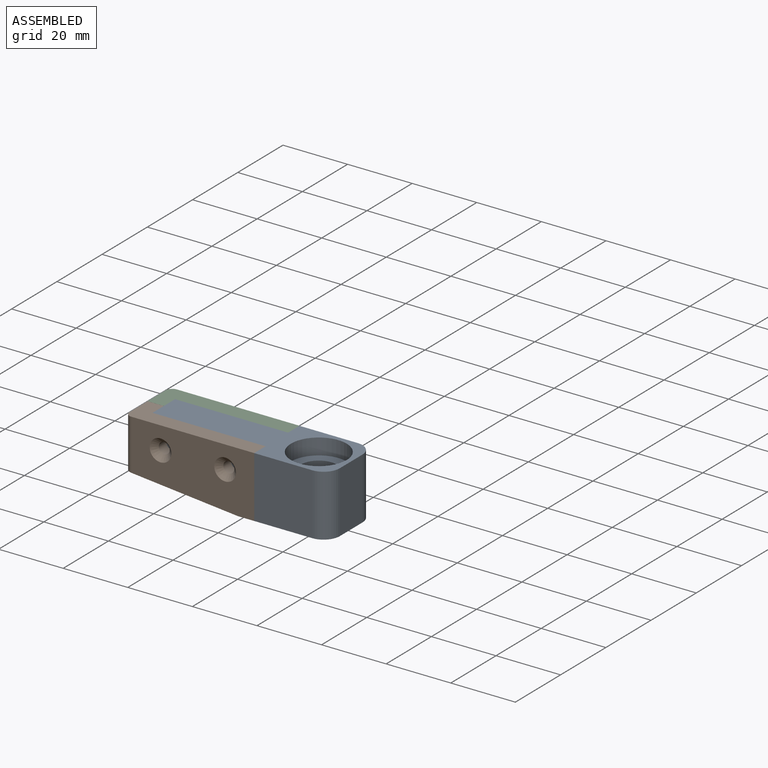
[diagram: assembled view]
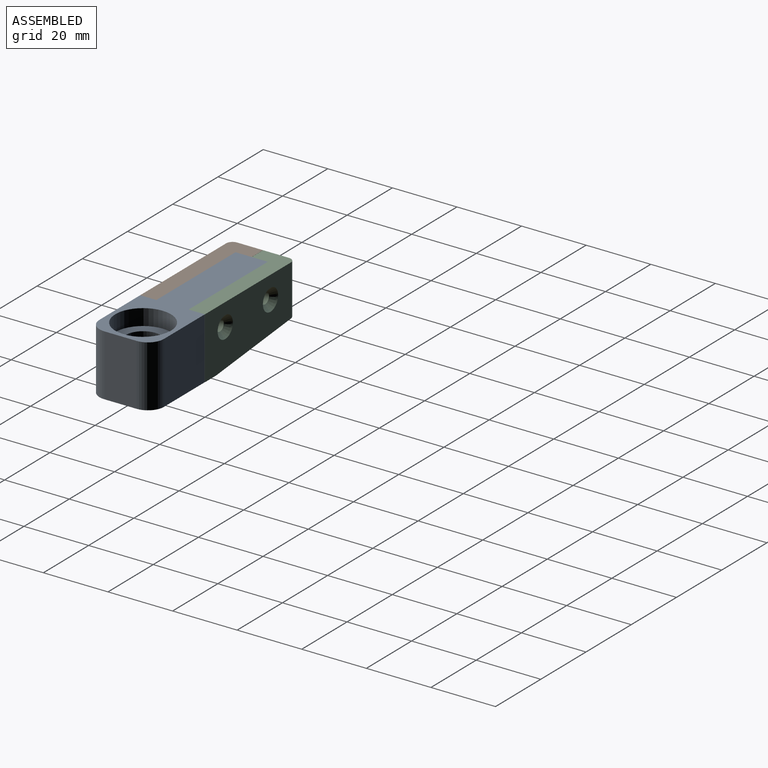
[diagram: assembled view, second angle]
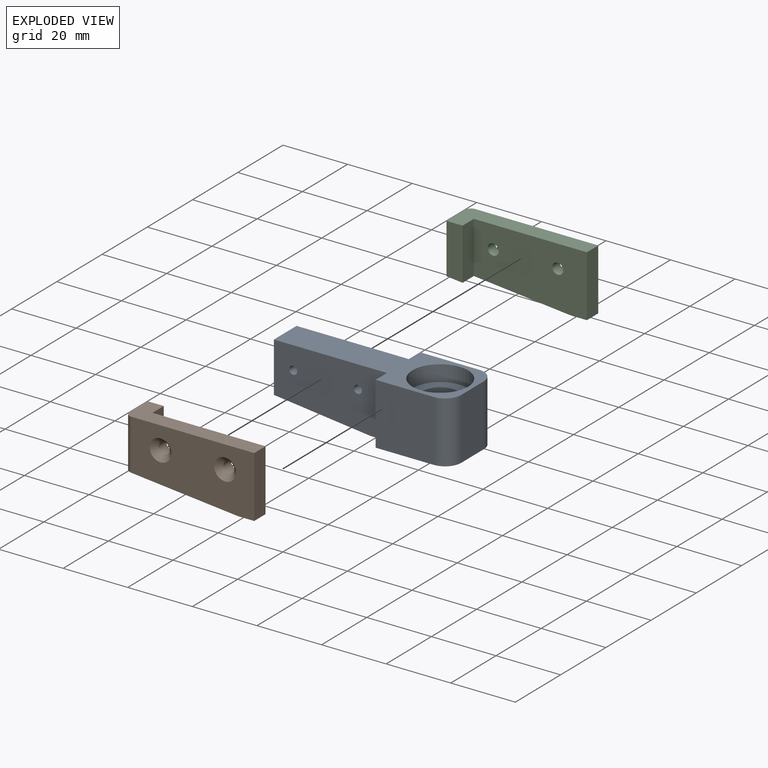
[diagram: exploded view]
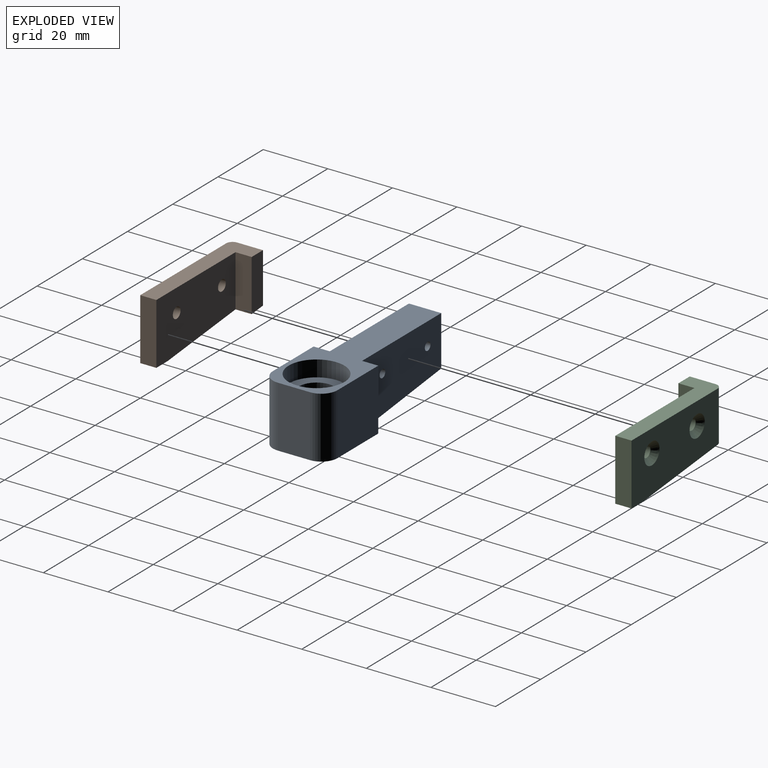
[diagram: exploded view, second angle]
ASSEMBLY  parts=3 mates=2
PART A: 20 faces, bbox 58x20x19 mm
  f0: plane 28x20mm, normal (0,0,-1), area 285.4mm2, adj f1,f4,f5,f7,f10,f12,f13,f14
  f1: plane 19x18mm, normal (0,1,0), area 342mm2, adj f0,f2,f14,f18
  f2: plane 58x20mm, normal (0,0,1), area 565.6mm2, adj f1,f3,f5,f7,f9,f12,f13,f14
  f3: plane 15.5x10mm, normal (-1,0,0), area 155mm2, adj f2,f4,f13,f15
  f4: plane 30x10mm, normal (-0.12,0,-0.99), area 302mm2, adj f0,f3,f13,f15
  f5: plane 19x18mm, normal (0,-1,0), area 342mm2, adj f0,f2,f12,f19
  f6: cylinder r=5.5mm len=11mm, axis (0,0,1), area 103.7mm2, adj f8,f11
  f7: plane 19x10mm, normal (1,0,0), area 190mm2, adj f0,f2,f18,f19
  f8: plane 17.25x17.25mm, normal (0,0,1), area 138.7mm2, adj f6,f9
  f9: cylinder r=8.62mm len=17.25mm, axis (0,0,1), area 271mm2, adj f2,f8
  f10: cylinder r=8.25mm len=16.5mm, axis (0,0,-1), area 570.2mm2, adj f0,f11
  f11: plane 16.5x16.5mm, normal (0,0,-1), area 118.8mm2, adj f6,f10
  f12: plane 19x5mm, normal (-1,0,0), area 95mm2, adj f0,f2,f5,f13
  f13: plane 35x19mm, normal (0,-1,0), area 602.7mm2, adj f0,f2,f3,f4,f12,f16,f17
  f14: plane 19x5mm, normal (-1,0,0), area 95mm2, adj f0,f1,f2,f15
  f15: plane 35x19mm, normal (0,1,0), area 602.7mm2, adj f0,f2,f3,f4,f14,f16,f17
  f16: cylinder r=1.25mm len=10mm, axis (0,-1,0), area 78.5mm2, adj f13,f15
  f17: cylinder r=1.25mm len=10mm, axis (0,-1,0), area 78.5mm2, adj f13,f15
  f18: cylinder r=5mm len=19mm, axis (0,0,1), area 149.2mm2, adj f0,f1,f2,f7
  f19: cylinder r=5mm len=19mm, axis (0,0,-1), area 149.2mm2, adj f0,f2,f5,f7
PART B: 14 faces, bbox 40x19x10 mm
  f0: plane 38x19mm, normal (0,0,-1), area 596.6mm2, adj f5,f6,f7,f8,f10,f12,f13
  f1: plane 15.5x8mm, normal (-1,0,0), area 124mm2, adj f4,f7,f8,f13
  f2: plane 35x19mm, normal (0,0,1), area 601.8mm2, adj f3,f5,f6,f7,f8,f9,f11
  f3: plane 16x5mm, normal (1,0,0), area 80mm2, adj f2,f4,f7,f8
  f4: plane 16x5mm, normal (0,0,1), area 78.7mm2, adj f1,f3,f7,f8
  f5: plane 5x5mm, normal (0,1,0), area 25mm2, adj f0,f2,f6,f8
  f6: plane 19x5mm, normal (1,0,0), area 95mm2, adj f0,f2,f5,f7
  f7: plane 40x10mm, normal (0,-1,0), area 224.1mm2, adj f0,f1,f2,f3,f4,f6,f13
  f8: plane 35x10mm, normal (-0.1,1,0), area 200.1mm2, adj f0,f1,f2,f3,f4,f5,f13
  f9: cylinder r=1.7mm len=3.4mm, axis (0,0,-1), area 35.7mm2, adj f2,f10
  f10: cone r=1.7mm half-angle=45deg, axis (0,0,-1), area 37.3mm2, adj f0,f9
  f11: cylinder r=1.7mm len=3.4mm, axis (0,0,-1), area 35.7mm2, adj f2,f12
  f12: cone r=1.7mm half-angle=45deg, axis (0,0,-1), area 37.3mm2, adj f0,f11
  f13: cylinder r=2mm len=15.7mm, axis (0,1,0), area 48.9mm2, adj f0,f1,f7,f8
PART C: 14 faces, bbox 40x19x10 mm
  f0: plane 15.5x8mm, normal (1,0,0), area 124mm2, adj f2,f6,f12,f13
  f1: plane 35x19mm, normal (0,0,1), area 601.8mm2, adj f3,f4,f6,f7,f8,f10,f12
  f2: plane 16x5mm, normal (0,0,1), area 78.7mm2, adj f0,f3,f6,f12
  f3: plane 16x4.96mm, normal (-1,0,0), area 79.4mm2, adj f1,f2,f6,f12
  f4: plane 19x5.04mm, normal (-1,0,0), area 95.7mm2, adj f1,f5,f6,f7
  f5: plane 38x19mm, normal (0,0,-1), area 596.6mm2, adj f4,f6,f7,f9,f11,f12,f13
  f6: plane 40x10mm, normal (0,-1,0), area 225.4mm2, adj f0,f1,f2,f3,f4,f5,f13
  f7: plane 5.04x5mm, normal (0,1,0), area 25.2mm2, adj f1,f4,f5,f12
  f8: cylinder r=1.7mm len=3.4mm, axis (0,0,-1), area 36.1mm2, adj f1,f9
  f9: cone r=1.7mm half-angle=45deg, axis (0,0,-1), area 37.3mm2, adj f5,f8
  f10: cylinder r=1.7mm len=3.4mm, axis (0,0,-1), area 36.1mm2, adj f1,f11
  f11: cone r=1.7mm half-angle=45deg, axis (0,0,-1), area 37.3mm2, adj f5,f10
  f12: plane 35x10mm, normal (0.1,1,0), area 201.2mm2, adj f0,f1,f2,f3,f5,f7,f13
  f13: cylinder r=2mm len=15.7mm, axis (0,1,0), area 48.9mm2, adj f0,f5,f6,f12
PLACE A t=(-10.33,9.24,-7.82)mm
PLACE B rot(axis=(-1,0,0),90deg) t=(24.67,-10.76,-26.82)mm
PLACE C rot(axis=(0,-0.71,0.71),180deg) t=(24.67,9.27,-26.82)mm
MATE fastened B.f11 <-> A.f16  axis (0,1,0) through (-4.33,-5.76,-14.82)mm
MATE fastened C.f10 <-> A.f16  axis (0,-1,0) through (-4.33,4.24,-14.82)mm
